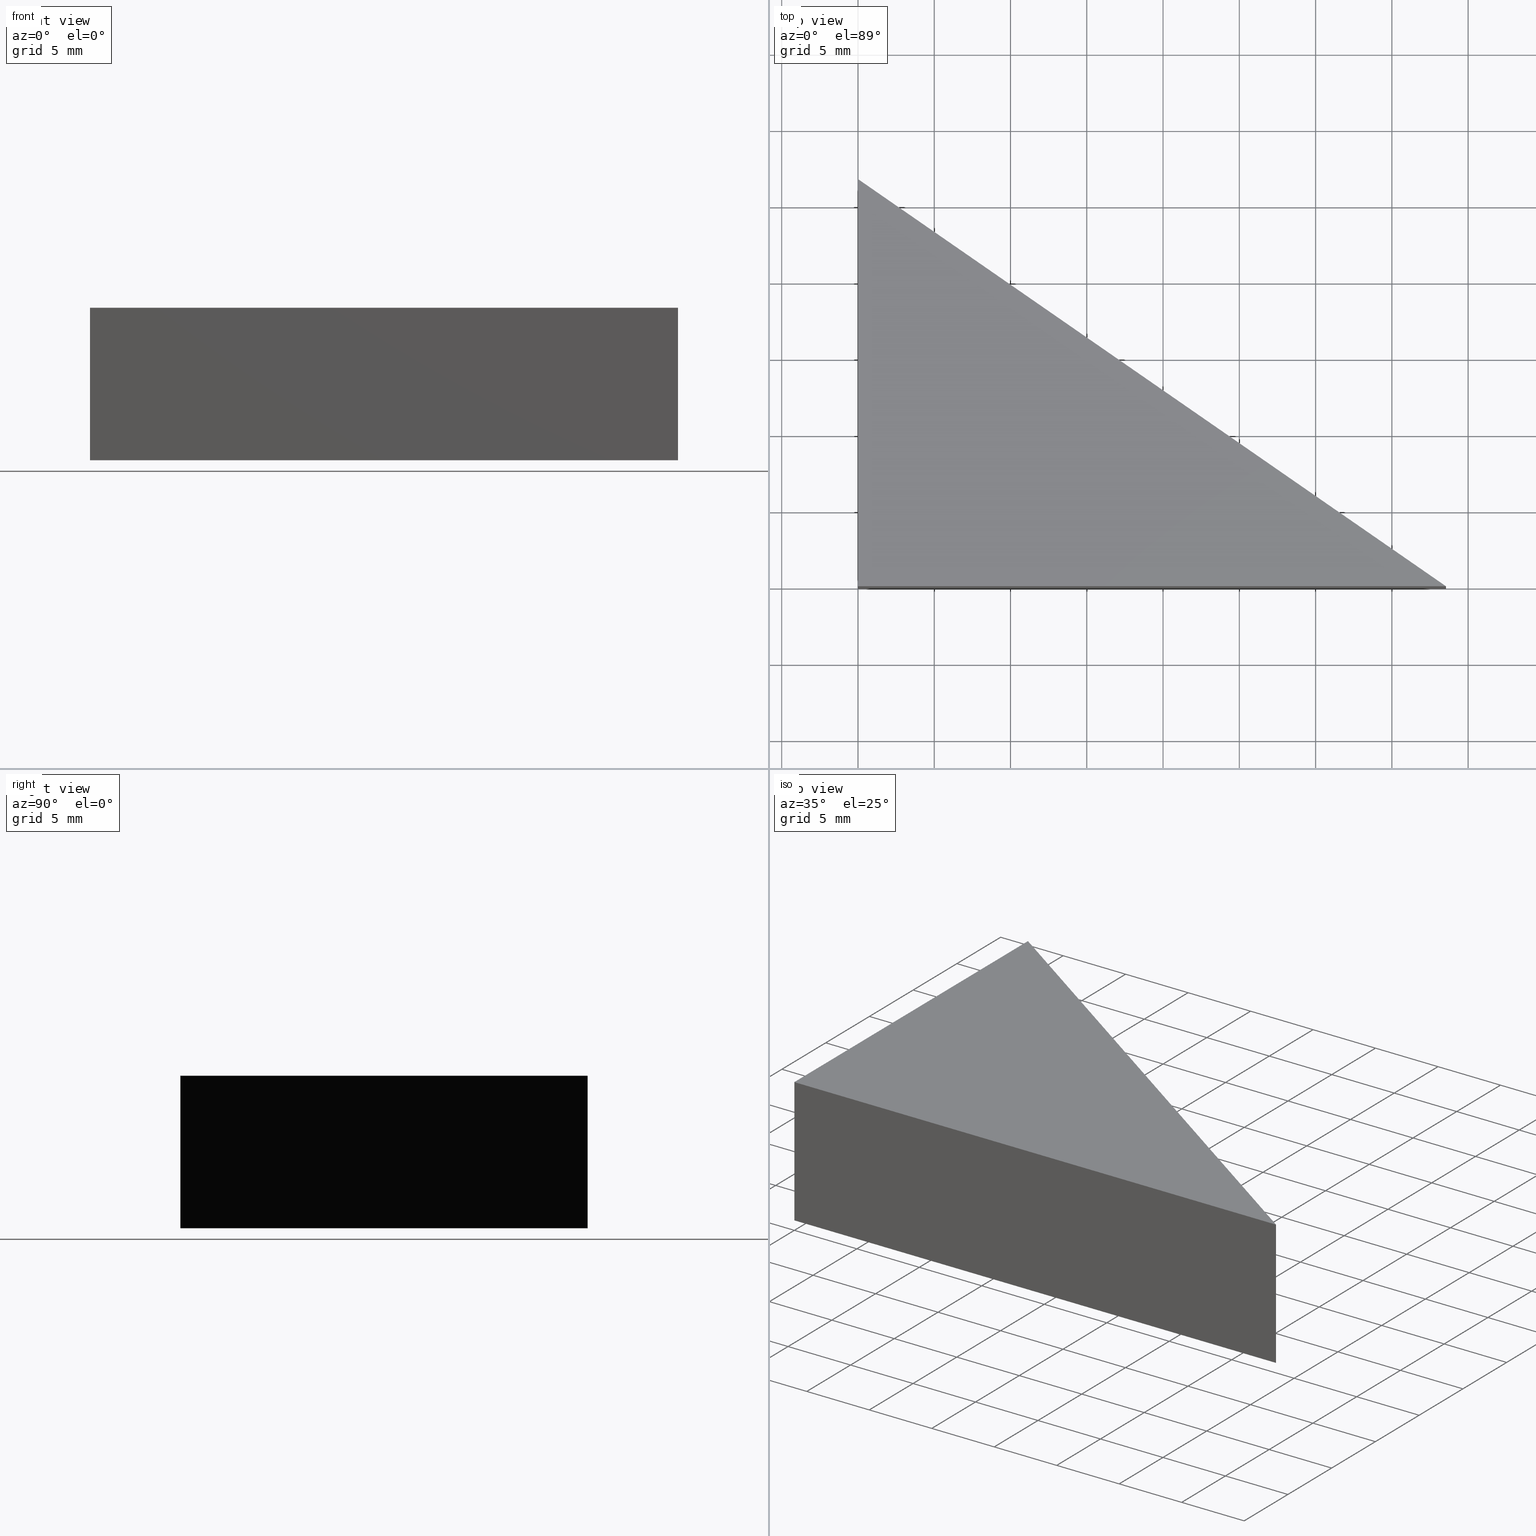
[diagram: canonical four-view strip — front | top / right | iso, engineering-drawing reading convention]
A machine part, canonical four-view strip (front | top / right | iso — engineering-drawing reading convention). The complete STEP part file that produces these views, byte-faithful:
ISO-10303-21;
HEADER;
/* Generated by software containing ST-Developer
 * from STEP Tools, Inc. (www.steptools.com) 
 */

FILE_DESCRIPTION(
/* description */ (''),
/* implementation_level */ '2;1');

FILE_NAME(
/* name */ 'E_3_01_08_00_00_WKZ-0090.stp',
/* time_stamp */ '2025-11-24T11:28:58+01:00',
/* author */ ('d.fischer'),
/* organization */ (''),
/* preprocessor_version */ 'ST-DEVELOPER v20',
/* originating_system */ 'Autodesk Inventor 2025',
/* authorisation */ '');

FILE_SCHEMA (('AUTOMOTIVE_DESIGN { 1 0 10303 214 3 1 1 }'));
ENDSEC;

DATA;
#10=MECHANICAL_DESIGN_GEOMETRIC_PRESENTATION_REPRESENTATION('',(#13),#159);
#11=SHAPE_REPRESENTATION_RELATIONSHIP('SRR','None',#166,#12);
#12=ADVANCED_BREP_SHAPE_REPRESENTATION('',(#14),#158);
#13=STYLED_ITEM('',(#175),#14);
#14=MANIFOLD_SOLID_BREP('Volumenk\X\F6rper1',#86);
#15=FACE_OUTER_BOUND('',#20,.T.);
#16=FACE_OUTER_BOUND('',#21,.T.);
#17=FACE_OUTER_BOUND('',#22,.T.);
#18=FACE_OUTER_BOUND('',#23,.T.);
#19=FACE_OUTER_BOUND('',#24,.T.);
#20=EDGE_LOOP('',(#58,#59,#60));
#21=EDGE_LOOP('',(#61,#62,#63,#64));
#22=EDGE_LOOP('',(#65,#66,#67,#68));
#23=EDGE_LOOP('',(#69,#70,#71,#72));
#24=EDGE_LOOP('',(#73,#74,#75));
#25=LINE('',#139,#34);
#26=LINE('',#141,#35);
#27=LINE('',#142,#36);
#28=LINE('',#146,#37);
#29=LINE('',#147,#38);
#30=LINE('',#148,#39);
#31=LINE('',#151,#40);
#32=LINE('',#152,#41);
#33=LINE('',#154,#42);
#34=VECTOR('',#118,10.);
#35=VECTOR('',#119,10.);
#36=VECTOR('',#120,10.);
#37=VECTOR('',#123,10.);
#38=VECTOR('',#124,10.);
#39=VECTOR('',#125,10.);
#40=VECTOR('',#128,10.);
#41=VECTOR('',#129,10.);
#42=VECTOR('',#132,10.);
#43=VERTEX_POINT('',#137);
#44=VERTEX_POINT('',#138);
#45=VERTEX_POINT('',#140);
#46=VERTEX_POINT('',#144);
#47=VERTEX_POINT('',#145);
#48=VERTEX_POINT('',#150);
#49=EDGE_CURVE('',#43,#44,#25,.T.);
#50=EDGE_CURVE('',#45,#43,#26,.T.);
#51=EDGE_CURVE('',#44,#45,#27,.T.);
#52=EDGE_CURVE('',#46,#47,#28,.T.);
#53=EDGE_CURVE('',#47,#44,#29,.T.);
#54=EDGE_CURVE('',#46,#45,#30,.T.);
#55=EDGE_CURVE('',#47,#48,#31,.T.);
#56=EDGE_CURVE('',#43,#48,#32,.T.);
#57=EDGE_CURVE('',#48,#46,#33,.T.);
#58=ORIENTED_EDGE('',*,*,#49,.F.);
#59=ORIENTED_EDGE('',*,*,#50,.F.);
#60=ORIENTED_EDGE('',*,*,#51,.F.);
#61=ORIENTED_EDGE('',*,*,#52,.T.);
#62=ORIENTED_EDGE('',*,*,#53,.T.);
#63=ORIENTED_EDGE('',*,*,#51,.T.);
#64=ORIENTED_EDGE('',*,*,#54,.F.);
#65=ORIENTED_EDGE('',*,*,#55,.T.);
#66=ORIENTED_EDGE('',*,*,#56,.F.);
#67=ORIENTED_EDGE('',*,*,#49,.T.);
#68=ORIENTED_EDGE('',*,*,#53,.F.);
#69=ORIENTED_EDGE('',*,*,#57,.T.);
#70=ORIENTED_EDGE('',*,*,#54,.T.);
#71=ORIENTED_EDGE('',*,*,#50,.T.);
#72=ORIENTED_EDGE('',*,*,#56,.T.);
#73=ORIENTED_EDGE('',*,*,#52,.F.);
#74=ORIENTED_EDGE('',*,*,#57,.F.);
#75=ORIENTED_EDGE('',*,*,#55,.F.);
#76=PLANE('',#109);
#77=PLANE('',#110);
#78=PLANE('',#111);
#79=PLANE('',#112);
#80=PLANE('',#113);
#81=ADVANCED_FACE('',(#15),#76,.F.);
#82=ADVANCED_FACE('',(#16),#77,.T.);
#83=ADVANCED_FACE('',(#17),#78,.T.);
#84=ADVANCED_FACE('',(#18),#79,.T.);
#85=ADVANCED_FACE('',(#19),#80,.T.);
#86=CLOSED_SHELL('',(#81,#82,#83,#84,#85));
#87=DERIVED_UNIT_ELEMENT(#90,1.);
#88=DERIVED_UNIT_ELEMENT(#161,-3.);
#89=DIMENSIONAL_EXPONENTS(0.,1.,0.,0.,0.,0.,0.);
#90=(
CONVERSION_BASED_UNIT('gram',#92)
MASS_UNIT()
NAMED_UNIT(#89)
);
#91=(
MASS_UNIT()
NAMED_UNIT(*)
SI_UNIT(.KILO.,.GRAM.)
);
#92=MASS_MEASURE_WITH_UNIT(MASS_MEASURE(0.001),#91);
#93=DERIVED_UNIT((#87,#88));
#94=MEASURE_REPRESENTATION_ITEM('density measure',
POSITIVE_RATIO_MEASURE(8.03),#93);
#95=PROPERTY_DEFINITION_REPRESENTATION(#100,#97);
#96=PROPERTY_DEFINITION_REPRESENTATION(#101,#98);
#97=REPRESENTATION('material name',(#99),#158);
#98=REPRESENTATION('density',(#94),#158);
#99=DESCRIPTIVE_REPRESENTATION_ITEM('1.4301','1.4301');
#100=PROPERTY_DEFINITION('material property','material name',#168);
#101=PROPERTY_DEFINITION('material property','density of part',#168);
#102=DATE_TIME_ROLE('creation_date');
#103=APPLIED_DATE_AND_TIME_ASSIGNMENT(#104,#102,(#168));
#104=DATE_AND_TIME(#105,#106);
#105=CALENDAR_DATE(2011,21,10);
#106=LOCAL_TIME(0,0,0.,#107);
#107=COORDINATED_UNIVERSAL_TIME_OFFSET(0,0,.BEHIND.);
#108=AXIS2_PLACEMENT_3D('',#135,#114,#115);
#109=AXIS2_PLACEMENT_3D('',#136,#116,#117);
#110=AXIS2_PLACEMENT_3D('',#143,#121,#122);
#111=AXIS2_PLACEMENT_3D('',#149,#126,#127);
#112=AXIS2_PLACEMENT_3D('',#153,#130,#131);
#113=AXIS2_PLACEMENT_3D('',#155,#133,#134);
#114=DIRECTION('axis',(0.,0.,1.));
#115=DIRECTION('refdir',(1.,0.,0.));
#116=DIRECTION('center_axis',(0.,0.,1.));
#117=DIRECTION('ref_axis',(1.,0.,0.));
#118=DIRECTION('',(-0.822077020060832,0.569376301832016,0.));
#119=DIRECTION('',(1.,1.4399779826526E-16,0.));
#120=DIRECTION('',(1.72390993122469E-16,-1.,0.));
#121=DIRECTION('center_axis',(-1.,-1.72390993122469E-16,0.));
#122=DIRECTION('ref_axis',(0.,0.,1.));
#123=DIRECTION('',(-1.72390993122469E-16,1.,0.));
#124=DIRECTION('',(0.,0.,-1.));
#125=DIRECTION('',(0.,0.,-1.));
#126=DIRECTION('center_axis',(0.569376301832016,0.822077020060832,0.));
#127=DIRECTION('ref_axis',(0.,0.,-1.));
#128=DIRECTION('',(0.822077020060832,-0.569376301832016,0.));
#129=DIRECTION('',(0.,0.,1.));
#130=DIRECTION('center_axis',(1.4399779826526E-16,-1.,0.));
#131=DIRECTION('ref_axis',(0.,0.,-1.));
#132=DIRECTION('',(-1.,-1.4399779826526E-16,0.));
#133=DIRECTION('center_axis',(0.,0.,1.));
#134=DIRECTION('ref_axis',(1.,0.,0.));
#135=CARTESIAN_POINT('',(0.,0.,0.));
#136=CARTESIAN_POINT('Origin',(14.685854095565,8.76085409556497,-5.));
#137=CARTESIAN_POINT('',(38.55,4.44089209850063E-15,-5.));
#138=CARTESIAN_POINT('',(-3.33066907387547E-15,26.7,-5.));
#139=CARTESIAN_POINT('',(-3.33066907387547E-15,26.7,-5.));
#140=CARTESIAN_POINT('',(1.27217044249445E-15,-1.11022302462516E-15,-5.));
#141=CARTESIAN_POINT('',(38.55,4.44089209850063E-15,-5.));
#142=CARTESIAN_POINT('',(1.27217044249445E-15,-1.11022302462516E-15,-5.));
#143=CARTESIAN_POINT('Origin',(1.27217044249445E-15,-1.11022302462516E-15,
0.));
#144=CARTESIAN_POINT('',(1.27217044249445E-15,-1.11022302462516E-15,5.));
#145=CARTESIAN_POINT('',(-3.33066907387547E-15,26.7,5.));
#146=CARTESIAN_POINT('',(1.27217044249445E-15,-1.11022302462516E-15,5.));
#147=CARTESIAN_POINT('',(-3.33066907387547E-15,26.7,0.));
#148=CARTESIAN_POINT('',(1.27217044249445E-15,-1.11022302462516E-15,0.));
#149=CARTESIAN_POINT('Origin',(-3.33066907387547E-15,26.7,0.));
#150=CARTESIAN_POINT('',(38.55,4.44089209850063E-15,5.));
#151=CARTESIAN_POINT('',(-3.33066907387547E-15,26.7,5.));
#152=CARTESIAN_POINT('',(38.55,4.44089209850063E-15,0.));
#153=CARTESIAN_POINT('Origin',(38.55,4.44089209850063E-15,0.));
#154=CARTESIAN_POINT('',(38.55,4.44089209850063E-15,5.));
#155=CARTESIAN_POINT('Origin',(14.685854095565,8.76085409556497,5.));
#156=UNCERTAINTY_MEASURE_WITH_UNIT(LENGTH_MEASURE(0.01),#160,
'DISTANCE_ACCURACY_VALUE',
'Maximum model space distance between geometric entities at asserted c
onnectivities');
#157=UNCERTAINTY_MEASURE_WITH_UNIT(LENGTH_MEASURE(0.01),#160,
'DISTANCE_ACCURACY_VALUE',
'Maximum model space distance between geometric entities at asserted c
onnectivities');
#158=(
GEOMETRIC_REPRESENTATION_CONTEXT(3)
GLOBAL_UNCERTAINTY_ASSIGNED_CONTEXT((#156))
GLOBAL_UNIT_ASSIGNED_CONTEXT((#160,#162,#163))
REPRESENTATION_CONTEXT('','3D')
);
#159=(
GEOMETRIC_REPRESENTATION_CONTEXT(3)
GLOBAL_UNCERTAINTY_ASSIGNED_CONTEXT((#157))
GLOBAL_UNIT_ASSIGNED_CONTEXT((#160,#162,#163))
REPRESENTATION_CONTEXT('','3D')
);
#160=(
LENGTH_UNIT()
NAMED_UNIT(*)
SI_UNIT(.MILLI.,.METRE.)
);
#161=(
LENGTH_UNIT()
NAMED_UNIT(*)
SI_UNIT(.CENTI.,.METRE.)
);
#162=(
NAMED_UNIT(*)
PLANE_ANGLE_UNIT()
SI_UNIT($,.RADIAN.)
);
#163=(
NAMED_UNIT(*)
SI_UNIT($,.STERADIAN.)
SOLID_ANGLE_UNIT()
);
#164=SHAPE_DEFINITION_REPRESENTATION(#165,#166);
#165=PRODUCT_DEFINITION_SHAPE('',$,#168);
#166=SHAPE_REPRESENTATION('',(#108),#158);
#167=PRODUCT_DEFINITION_CONTEXT('part definition',#172,'design');
#168=PRODUCT_DEFINITION('WKZ-0090','E_3_01_08_00_00_WKZ-0090',#169,#167);
#169=PRODUCT_DEFINITION_FORMATION('',$,#174);
#170=PRODUCT_RELATED_PRODUCT_CATEGORY('E_3_01_08_00_00_WKZ-0090',
'E_3_01_08_00_00_WKZ-0090',(#174));
#171=APPLICATION_PROTOCOL_DEFINITION('international standard',
'automotive_design',2009,#172);
#172=APPLICATION_CONTEXT(
'Core Data for Automotive Mechanical Design Process');
#173=PRODUCT_CONTEXT('part definition',#172,'mechanical');
#174=PRODUCT('WKZ-0090','E_3_01_08_00_00_WKZ-0090',$,(#173));
#175=PRESENTATION_STYLE_ASSIGNMENT((#176));
#176=SURFACE_STYLE_USAGE(.BOTH.,#179);
#177=SURFACE_STYLE_RENDERING_WITH_PROPERTIES($,#183,(#178));
#178=SURFACE_STYLE_TRANSPARENT(0.);
#179=SURFACE_SIDE_STYLE('',(#180,#177));
#180=SURFACE_STYLE_FILL_AREA(#181);
#181=FILL_AREA_STYLE('',(#182));
#182=FILL_AREA_STYLE_COLOUR('',#183);
#183=COLOUR_RGB('',0.92156862745098,0.92156862745098,0.92156862745098);
ENDSEC;
END-ISO-10303-21;
